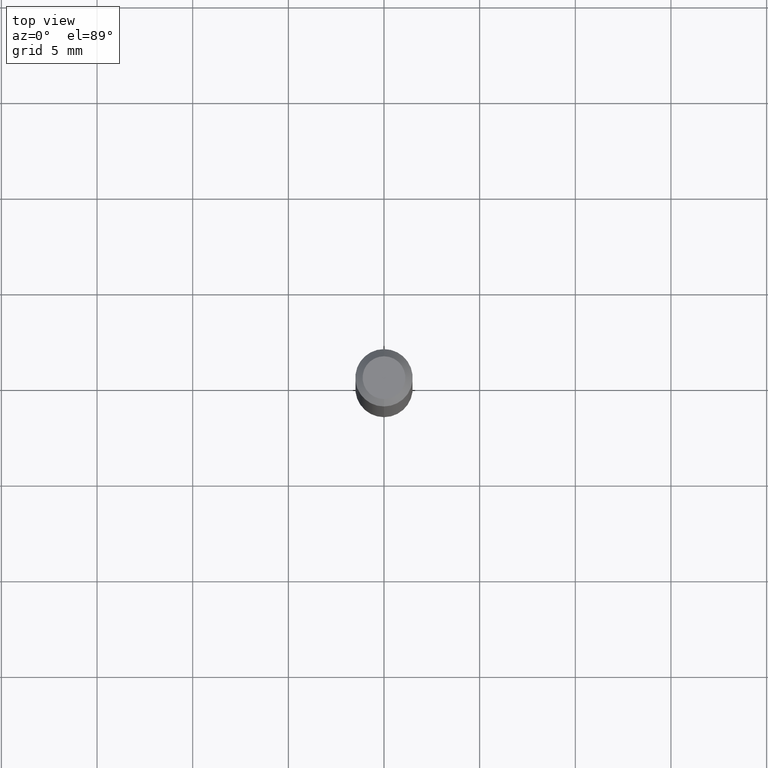
[diagram: clean part render]
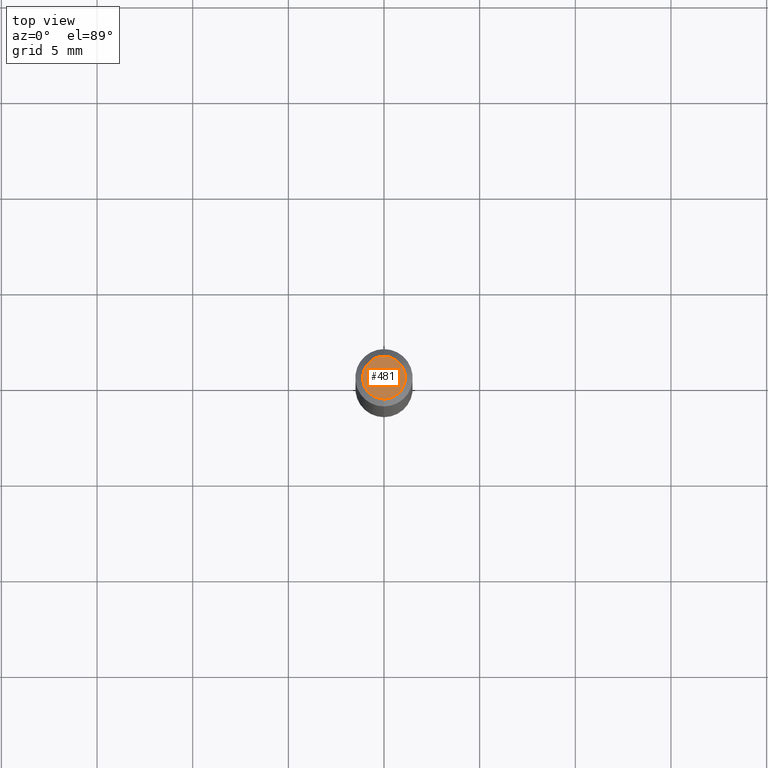
[diagram: same view with one face highlighted and labeled with its STEP entity id]
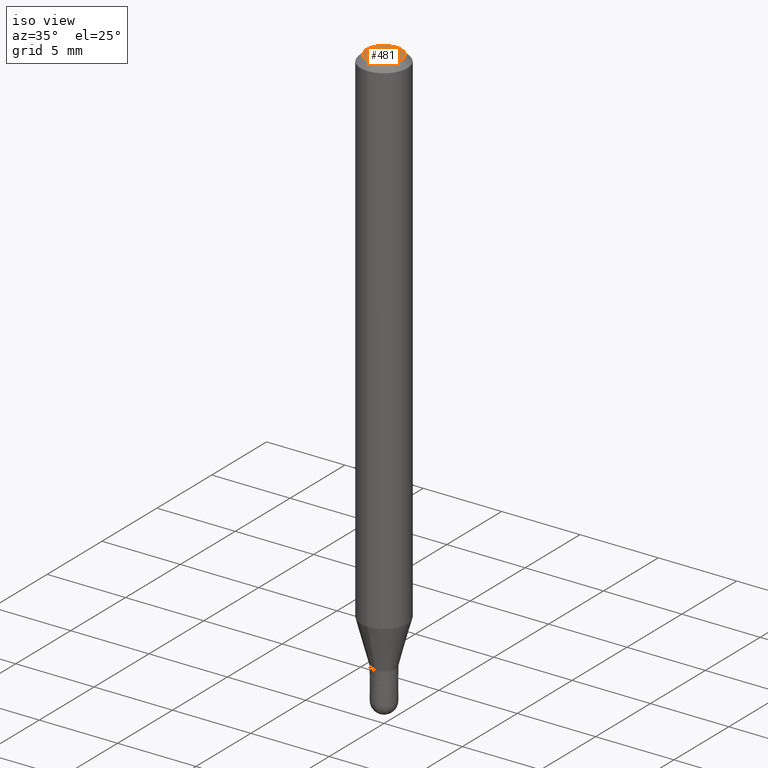
[diagram: same view with one face highlighted and labeled with its STEP entity id]
A machine part, top view. The second image highlights one B-rep face of the part: STEP entity #481.
A second angle (iso view) of the same face is appended — the face is thin or edge-on in the first view.
In plain terms, the highlighted planar face has unit normal (0, -0, -1).
Its self-contained STEP definition (entity closure, byte-faithful):
#8 = VERTEX_POINT ( 'NONE', #331 ) ;
#67 = EDGE_LOOP ( 'NONE', ( #79, #374 ) ) ;
#79 = ORIENTED_EDGE ( 'NONE', *, *, #332, .T. ) ;
#88 = EDGE_CURVE ( 'NONE', #111, #8, #477, .T. ) ;
#97 = DIRECTION ( 'NONE',  ( 6.982962677686265922E-15, 1.000000000000000000, -3.491444056450709141E-15 ) ) ;
#111 = VERTEX_POINT ( 'NONE', #359 ) ;
#137 = FACE_OUTER_BOUND ( 'NONE', #67, .T. ) ;
#171 = AXIS2_PLACEMENT_3D ( 'NONE', #427, #300, #97 ) ;
#182 = DIRECTION ( 'NONE',  ( -6.982962677686265133E-15, -1.000000000000000000, 3.491444056450709535E-15 ) ) ;
#214 = DIRECTION ( 'NONE',  ( -2.445494840340628383E-29, 3.491444056450709535E-15, 1.000000000000000000 ) ) ;
#245 = CARTESIAN_POINT ( 'NONE',  ( 5.835900805560660553E-46, -8.331942004331762015E-32, -2.386388517077300107E-17 ) ) ;
#268 = PLANE ( 'NONE',  #171 ) ;
#300 = DIRECTION ( 'NONE',  ( 2.445494840340628103E-29, -3.491444056450709141E-15, -1.000000000000000000 ) ) ;
#331 = CARTESIAN_POINT ( 'NONE',  ( 3.599717260347271507E-16, 0.04404999999999999888, -1.776619958574267697E-16 ) ) ;
#332 = EDGE_CURVE ( 'NONE', #8, #111, #461, .T. ) ;
#345 = AXIS2_PLACEMENT_3D ( 'NONE', #510, #431, #182 ) ;
#359 = CARTESIAN_POINT ( 'NONE',  ( -3.536586717851222218E-16, -0.04404999999999999888, 1.299342255158807429E-16 ) ) ;
#374 = ORIENTED_EDGE ( 'NONE', *, *, #88, .T. ) ;
#375 = AXIS2_PLACEMENT_3D ( 'NONE', #245, #214, #379 ) ;
#379 = DIRECTION ( 'NONE',  ( -6.982962677686265133E-15, -1.000000000000000000, 3.491444056450709535E-15 ) ) ;
#427 = CARTESIAN_POINT ( 'NONE',  ( 3.075995059520799729E-16, 0.04404999999999999888, -1.657300532720402198E-16 ) ) ;
#431 = DIRECTION ( 'NONE',  ( -2.445494840340628383E-29, 3.491444056450709535E-15, 1.000000000000000000 ) ) ;
#461 = CIRCLE ( 'NONE', #375, 0.04404999999999999888 ) ;
#477 = CIRCLE ( 'NONE', #345, 0.04404999999999999888 ) ;
#481 = ADVANCED_FACE ( 'NONE', ( #137 ), #268, .F. ) ;
#510 = CARTESIAN_POINT ( 'NONE',  ( 5.835900805560660553E-46, -8.331942004331762015E-32, -2.386388517077300107E-17 ) ) ;